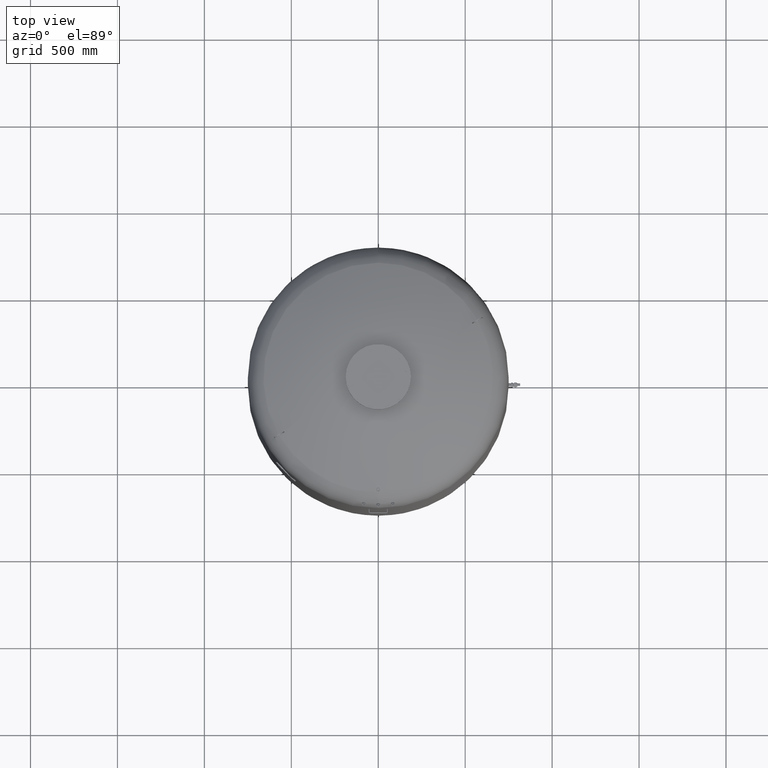
[diagram: clean part render]
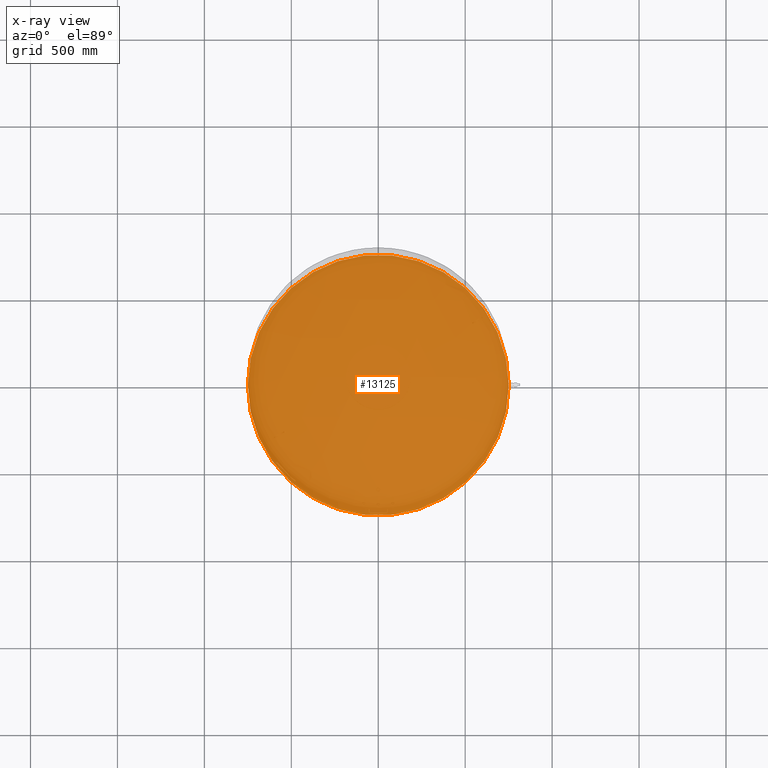
[diagram: x-ray — body ghosted, one internal face saturated and labeled with its STEP entity id]
A machine part, top view, then the same camera in x-ray: the body is ghosted and one INTERNAL B-rep face — a face not visible from any outside direction — is saturated and labeled: STEP entity #13125.
In plain terms, the highlighted planar face has unit normal (0, 0, 1).
Its self-contained STEP definition (entity closure, byte-faithful):
#12923=CARTESIAN_POINT('',(-750.0,-6.062002E-014,818.999999999999890));
#12924=VERTEX_POINT('',#12923);
#12933=CARTESIAN_POINT('',(750.0,3.122546E-014,819.000000000000110));
#12934=VERTEX_POINT('',#12933);
#12935=CARTESIAN_POINT('',(-5.673224E-014,-6.062002E-014,819.0));
#12936=DIRECTION('',(0.0,0.0,1.0));
#12937=DIRECTION('',(-1.0,0.0,0.0));
#12938=AXIS2_PLACEMENT_3D('',#12935,#12936,#12937);
#12939=CIRCLE('',#12938,750.0);
#12940=EDGE_CURVE('',#12934,#12924,#12939,.T.);
#13106=CARTESIAN_POINT('',(-5.673224E-014,-6.062002E-014,819.0));
#13107=DIRECTION('',(0.0,0.0,1.0));
#13108=DIRECTION('',(-1.0,0.0,0.0));
#13109=AXIS2_PLACEMENT_3D('',#13106,#13107,#13108);
#13110=CIRCLE('',#13109,750.0);
#13111=EDGE_CURVE('',#12924,#12934,#13110,.T.);
#13116=CARTESIAN_POINT('',(-375.0,-6.062002E-014,819.0));
#13117=DIRECTION('',(0.0,0.0,1.0));
#13118=DIRECTION('',(0.0,-1.0,0.0));
#13119=AXIS2_PLACEMENT_3D('',#13116,#13117,#13118);
#13120=PLANE('',#13119);
#13121=ORIENTED_EDGE('',*,*,#13111,.T.);
#13122=ORIENTED_EDGE('',*,*,#12940,.T.);
#13123=EDGE_LOOP('',(#13121,#13122));
#13124=FACE_OUTER_BOUND('',#13123,.T.);
#13125=ADVANCED_FACE('',(#13124),#13120,.T.);